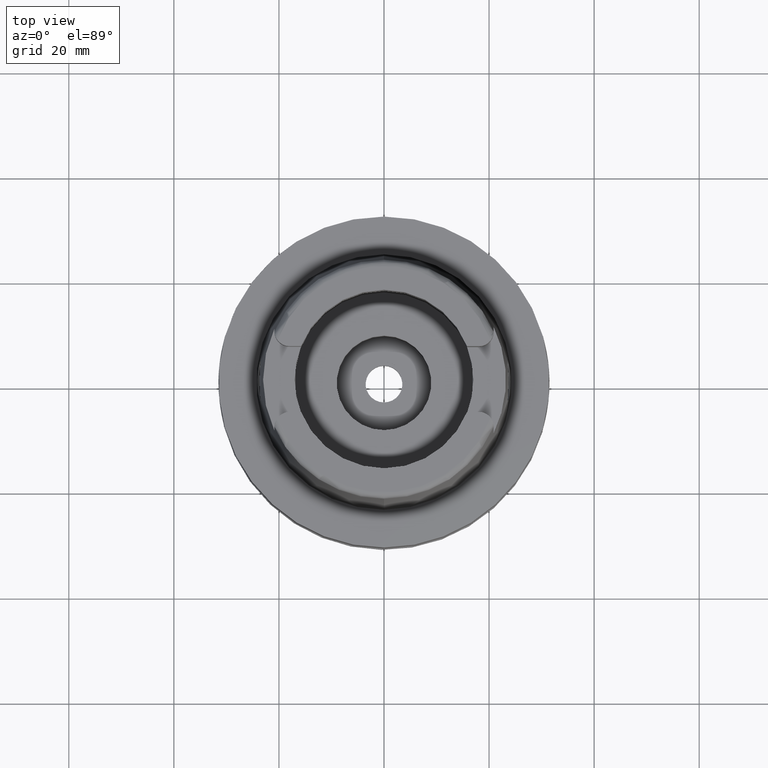
[diagram: clean part render]
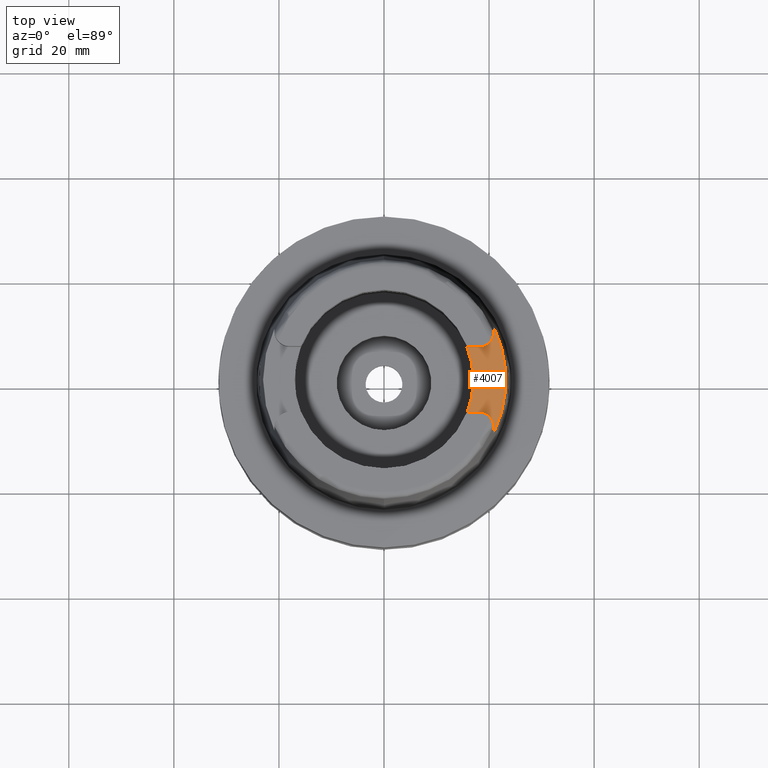
[diagram: same view with one face highlighted and labeled with its STEP entity id]
A machine part, top view. The second image highlights one B-rep face of the part: STEP entity #4007.
In plain terms, the highlighted planar face has unit normal (0, 0, 1).
Its self-contained STEP definition (entity closure, byte-faithful):
#10 = VERTEX_POINT ( 'NONE', #3607 ) ;
#102 = CIRCLE ( 'NONE', #1304, 17.00000000000000000 ) ;
#110 = CARTESIAN_POINT ( 'NONE',  ( 15.80149043602999903, -6.270000000000000462, 22.00000000000000000 ) ) ;
#330 = PLANE ( 'NONE',  #4636 ) ;
#397 = EDGE_CURVE ( 'NONE', #4652, #3040, #3911, .T. ) ;
#432 = EDGE_LOOP ( 'NONE', ( #3416, #593, #3087, #1219, #4767, #2009, #1087, #4095 ) ) ;
#515 = DIRECTION ( 'NONE',  ( 0.9294994374136111848, -0.3688235294118045182, 0.0000000000000000000 ) ) ;
#518 = CARTESIAN_POINT ( 'NONE',  ( 20.87000000000000099, -9.070000000000000284, 22.00000000000000000 ) ) ;
#593 = ORIENTED_EDGE ( 'NONE', *, *, #799, .F. ) ;
#625 = VECTOR ( 'NONE', #4719, 999.9999999999998863 ) ;
#647 = VECTOR ( 'NONE', #4857, 1000.000000000000000 ) ;
#730 = CARTESIAN_POINT ( 'NONE',  ( 20.87000000000000099, 10.16755860605000095, 22.00000000000000000 ) ) ;
#799 = EDGE_CURVE ( 'NONE', #802, #5394, #4454, .T. ) ;
#800 = DIRECTION ( 'NONE',  ( 0.0000000000000000000, 0.0000000000000000000, 1.000000000000000000 ) ) ;
#802 = VERTEX_POINT ( 'NONE', #518 ) ;
#848 = DIRECTION ( 'NONE',  ( 0.0000000000000000000, 0.0000000000000000000, 1.000000000000000000 ) ) ;
#851 = EDGE_CURVE ( 'NONE', #5394, #4863, #1426, .T. ) ;
#864 = DIRECTION ( 'NONE',  ( 0.8989877876694615244, 0.4379736951246811505, 0.0000000000000000000 ) ) ;
#890 = DIRECTION ( 'NONE',  ( 0.0000000000000000000, -1.000000000000000000, 0.0000000000000000000 ) ) ;
#912 = AXIS2_PLACEMENT_3D ( 'NONE', #3039, #3826, #864 ) ;
#1087 = ORIENTED_EDGE ( 'NONE', *, *, #2568, .F. ) ;
#1156 = VERTEX_POINT ( 'NONE', #5174 ) ;
#1219 = ORIENTED_EDGE ( 'NONE', *, *, #397, .F. ) ;
#1304 = AXIS2_PLACEMENT_3D ( 'NONE', #5213, #4380, #515 ) ;
#1353 = CARTESIAN_POINT ( 'NONE',  ( 20.87000000000000099, -10.16755860605000095, 22.00000000000000000 ) ) ;
#1382 = DIRECTION ( 'NONE',  ( 1.000000000000000000, -8.222026968698000936E-14, 0.0000000000000000000 ) ) ;
#1426 = LINE ( 'NONE', #3152, #647 ) ;
#1636 = FACE_OUTER_BOUND ( 'NONE', #432, .T. ) ;
#1659 = AXIS2_PLACEMENT_3D ( 'NONE', #3484, #4386, #3516 ) ;
#1664 = AXIS2_PLACEMENT_3D ( 'NONE', #4774, #800, #890 ) ;
#1734 = VECTOR ( 'NONE', #1382, 1000.000000000000000 ) ;
#1751 = CARTESIAN_POINT ( 'NONE',  ( 18.07000000000000028, -6.270000000000000462, 22.00000000000000000 ) ) ;
#2009 = ORIENTED_EDGE ( 'NONE', *, *, #3292, .F. ) ;
#2123 = EDGE_CURVE ( 'NONE', #10, #4652, #3852, .T. ) ;
#2184 = LINE ( 'NONE', #2625, #1734 ) ;
#2503 = B_SPLINE_CURVE_WITH_KNOTS ( 'NONE', 3,
 ( #1353, #2542, #5628, #2599 ),
 .UNSPECIFIED., .F., .F.,
 ( 4, 4 ),
 ( 0.0000000000000000000, 1.000000000000000000 ),
 .UNSPECIFIED. ) ;
#2542 = CARTESIAN_POINT ( 'NONE',  ( 20.87000000000000099, -9.801705737115721462, 22.00000000000000000 ) ) ;
#2568 = EDGE_CURVE ( 'NONE', #5006, #1156, #2184, .T. ) ;
#2599 = CARTESIAN_POINT ( 'NONE',  ( 20.87000000000000099, -9.070000000000000284, 22.00000000000000000 ) ) ;
#2625 = CARTESIAN_POINT ( 'NONE',  ( 15.80149043602999903, 6.270000000000000462, 22.00000000000000000 ) ) ;
#2999 = CARTESIAN_POINT ( 'NONE',  ( 20.87000000000000099, 9.070000000000000284, 22.00000000000000000 ) ) ;
#3039 = CARTESIAN_POINT ( 'NONE',  ( 0.0000000000000000000, 0.0000000000000000000, 22.00000000000000000 ) ) ;
#3040 = VERTEX_POINT ( 'NONE', #3829 ) ;
#3074 = EDGE_CURVE ( 'NONE', #3040, #802, #2503, .T. ) ;
#3087 = ORIENTED_EDGE ( 'NONE', *, *, #3074, .F. ) ;
#3152 = CARTESIAN_POINT ( 'NONE',  ( 18.07000000000000028, -6.270000000000000462, 22.00000000000000000 ) ) ;
#3292 = EDGE_CURVE ( 'NONE', #1156, #10, #3559, .T. ) ;
#3416 = ORIENTED_EDGE ( 'NONE', *, *, #851, .F. ) ;
#3484 = CARTESIAN_POINT ( 'NONE',  ( 18.07000000000000028, -9.070000000000000284, 22.00000000000000000 ) ) ;
#3516 = DIRECTION ( 'NONE',  ( 1.000000000000000000, 0.0000000000000000000, 0.0000000000000000000 ) ) ;
#3559 = CIRCLE ( 'NONE', #1664, 2.800000000000000266 ) ;
#3607 = CARTESIAN_POINT ( 'NONE',  ( 20.87000000000000099, 9.070000000000000284, 22.00000000000000000 ) ) ;
#3612 = CARTESIAN_POINT ( 'NONE',  ( 15.80149043602999903, 6.270000000000000462, 22.00000000000000000 ) ) ;
#3696 = EDGE_CURVE ( 'NONE', #4863, #5006, #102, .T. ) ;
#3752 = CARTESIAN_POINT ( 'NONE',  ( 0.0000000000000000000, 0.0000000000000000000, 22.00000000000000000 ) ) ;
#3826 = DIRECTION ( 'NONE',  ( 0.0000000000000000000, 0.0000000000000000000, -1.000000000000000000 ) ) ;
#3829 = CARTESIAN_POINT ( 'NONE',  ( 20.87000000000000099, -10.16755860605000095, 22.00000000000000000 ) ) ;
#3852 = LINE ( 'NONE', #2999, #625 ) ;
#3911 = CIRCLE ( 'NONE', #912, 23.21499834174998966 ) ;
#4007 = ADVANCED_FACE ( 'NONE', ( #1636 ), #330, .T. ) ;
#4095 = ORIENTED_EDGE ( 'NONE', *, *, #3696, .F. ) ;
#4380 = DIRECTION ( 'NONE',  ( 0.0000000000000000000, 0.0000000000000000000, 1.000000000000000000 ) ) ;
#4386 = DIRECTION ( 'NONE',  ( 0.0000000000000000000, 0.0000000000000000000, 1.000000000000000000 ) ) ;
#4454 = CIRCLE ( 'NONE', #1659, 2.800000000000000266 ) ;
#4636 = AXIS2_PLACEMENT_3D ( 'NONE', #3752, #848, #5055 ) ;
#4652 = VERTEX_POINT ( 'NONE', #730 ) ;
#4719 = DIRECTION ( 'NONE',  ( -4.018343739316107275E-06, 0.9999999999919265692, -7.121100977230194019E-14 ) ) ;
#4767 = ORIENTED_EDGE ( 'NONE', *, *, #2123, .F. ) ;
#4774 = CARTESIAN_POINT ( 'NONE',  ( 18.07000000000000028, 9.070000000000000284, 22.00000000000000000 ) ) ;
#4857 = DIRECTION ( 'NONE',  ( -1.000000000000000000, -8.496094534321000305E-14, 0.0000000000000000000 ) ) ;
#4863 = VERTEX_POINT ( 'NONE', #110 ) ;
#5006 = VERTEX_POINT ( 'NONE', #3612 ) ;
#5055 = DIRECTION ( 'NONE',  ( 1.000000000000000000, 0.0000000000000000000, 0.0000000000000000000 ) ) ;
#5174 = CARTESIAN_POINT ( 'NONE',  ( 18.07000000000000028, 6.270000000000000462, 22.00000000000000000 ) ) ;
#5213 = CARTESIAN_POINT ( 'NONE',  ( 0.0000000000000000000, 0.0000000000000000000, 22.00000000000000000 ) ) ;
#5394 = VERTEX_POINT ( 'NONE', #1751 ) ;
#5628 = CARTESIAN_POINT ( 'NONE',  ( 20.87000000000000099, -9.435852868557860873, 22.00000000000000000 ) ) ;